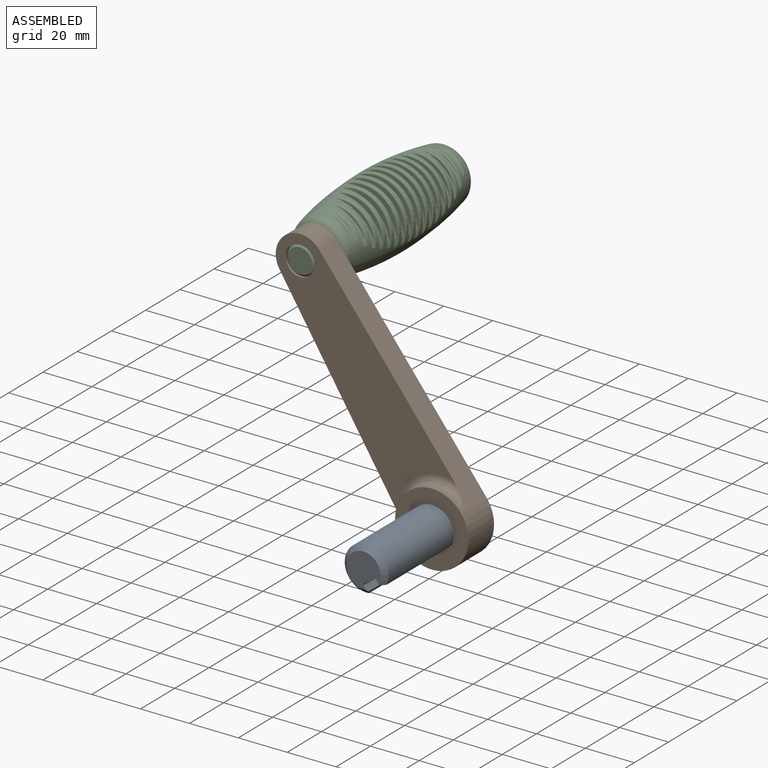
[diagram: assembled view]
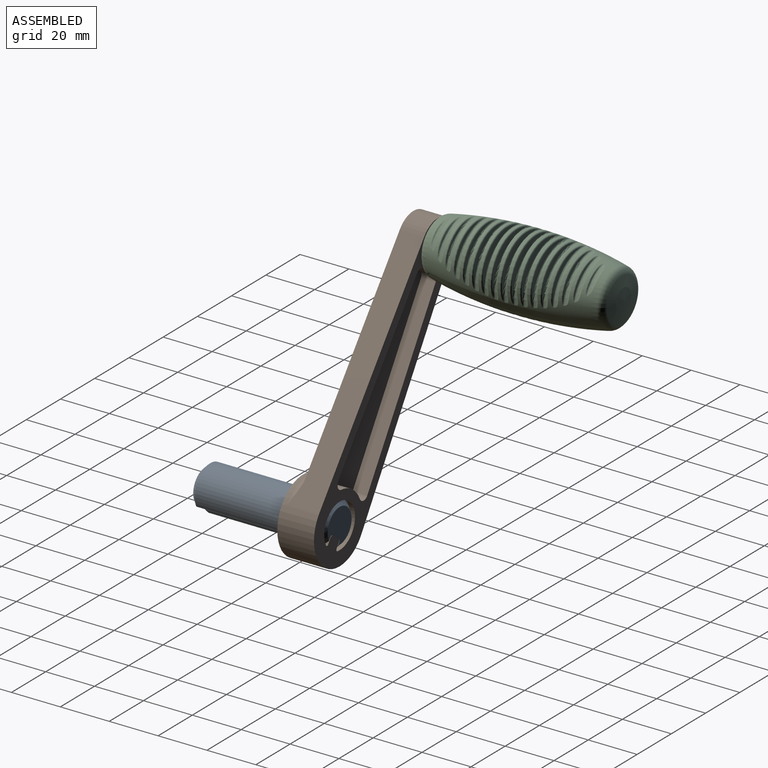
[diagram: assembled view, second angle]
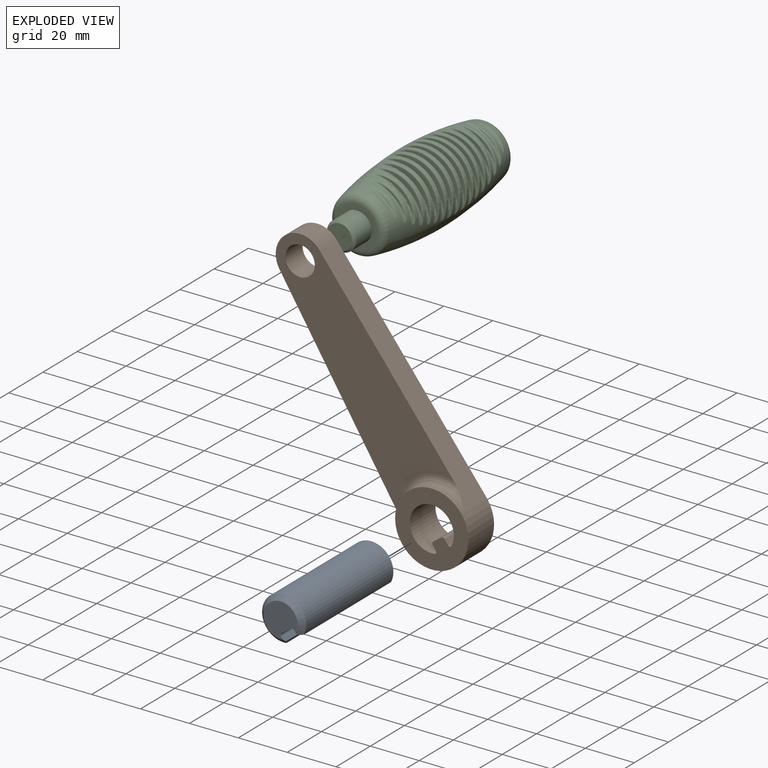
[diagram: exploded view]
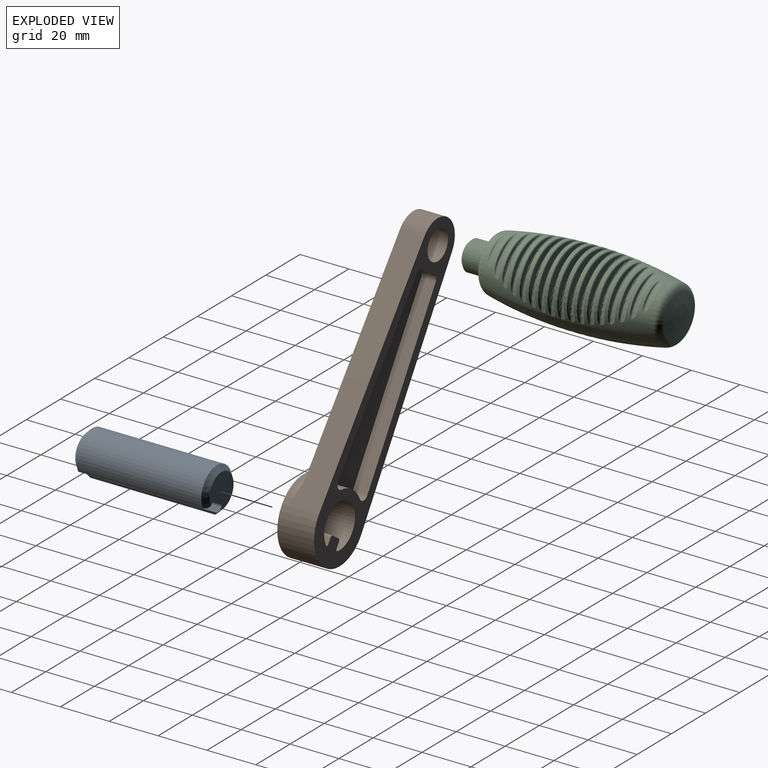
[diagram: exploded view, second angle]
ASSEMBLY  parts=3 mates=2
PART A: 12 faces, bbox 18.1x55.1x17.3 mm
  f0: plane 14x13.2mm, normal (0,-1,0), area 136.6mm2, adj f3,f5,f6,f7,f8,f9
  f1: plane 14x13.2mm, normal (0,1,0), area 136.6mm2, adj f2,f5,f6,f7,f8,f9
  f2: cone r=9mm half-angle=45deg, axis (0,-1,0), area 121.4mm2, adj f1,f4,f5,f7,f10,f11
  f3: cone r=7mm half-angle=45deg, axis (0,1,0), area 121.4mm2, adj f0,f4,f5,f7,f10,f11
  f4: cylinder r=9mm len=51mm, axis (0,1,0), area 2419.3mm2, adj f2,f3,f10,f11
  f5: plane 55.03x2.25mm, normal (-1,0,0), area 120.9mm2, adj f0,f1,f2,f3,f8,f11
  f6: plane 55x4.5mm, normal (0,0,-1), area 247.5mm2, adj f0,f1,f8,f9
  f7: plane 55.03x2.25mm, normal (1,0,0), area 120.9mm2, adj f0,f1,f2,f3,f9,f10
  f8: cylinder r=1mm len=55mm, axis (0,1,0), area 86.4mm2, adj f0,f1,f5,f6
  f9: cylinder r=1mm len=55mm, axis (0,1,0), area 86.4mm2, adj f0,f1,f6,f7
  f10: plane 53.22x1.16mm, normal (0.51,0,-0.86), area 67.3mm2, adj f2,f3,f4,f7
  f11: plane 53.22x1.16mm, normal (-0.51,0,-0.86), area 67.3mm2, adj f2,f3,f4,f5
PART B: 26 faces, bbox 43.5x15.1x125 mm
  f0: cylinder r=9mm len=18mm, axis (0,-1,0), area 720.8mm2, adj f1,f2,f24,f25
  f1: plane 125x30mm, normal (0,1,0), area 1352.3mm2, adj f0,f3,f4,f5,f6,f7,f9,f10
  f2: plane 30x30mm, normal (0,-1,0), area 481.6mm2, adj f0,f3,f19,f20,f21,f22,f23,f24
  f3: cylinder r=15mm len=30mm, axis (0,-1,0), area 820.6mm2, adj f1,f2,f4,f6,f14
  f4: plane 99.75x13mm, normal (-1,0,0.05), area 1010.1mm2, adj f1,f3,f5,f8,f14
  f5: cylinder r=10mm len=19.98mm, axis (0,1,0), area 304.2mm2, adj f1,f4,f6,f8
  f6: plane 99.75x13mm, normal (1,0,0.05), area 1010.1mm2, adj f1,f3,f5,f8,f14
  f7: cylinder r=6mm len=12mm, axis (0,1,0), area 377mm2, adj f1,f8
  f8: plane 99.31x28.97mm, normal (0,-1,0), area 2083.6mm2, adj f4,f5,f6,f7,f14
  f9: cylinder r=13mm len=13.15mm, axis (0,-1,0), area 82.7mm2, adj f1,f13,f15,f16
  f10: plane 74.82x6mm, normal (1,0,-0.05), area 449.5mm2, adj f1,f13,f16,f18
  f11: plane 74.82x6mm, normal (-1,0,-0.05), area 449.5mm2, adj f1,f13,f15,f17
  f12: cylinder r=10mm len=6.55mm, axis (0,1,0), area 40.1mm2, adj f1,f13,f17,f18
  f13: plane 79.82x20.68mm, normal (0,1,0), area 1322.9mm2, adj f9,f10,f11,f12,f15,f16,f17,f18
  f14: torus R=18mm, axis (0,1,0), area 180.7mm2, adj f3,f4,f6,f8
  f15: cylinder r=2.5mm len=6mm, axis (0,-1,0), area 32.3mm2, adj f1,f9,f11,f13
  f16: cylinder r=2.5mm len=6mm, axis (0,-1,0), area 32.3mm2, adj f1,f9,f10,f13
  f17: cylinder r=2.5mm len=6mm, axis (0,1,0), area 27.8mm2, adj f1,f11,f12,f13
  f18: cylinder r=2.5mm len=6mm, axis (0,1,0), area 27.8mm2, adj f1,f10,f12,f13
  f19: plane 15x4mm, normal (0,0,1), area 60mm2, adj f1,f2,f22,f23
  f20: plane 15x2.35mm, normal (1,0,0), area 35.2mm2, adj f1,f2,f22,f24
  f21: plane 15x2.35mm, normal (-1,0,0), area 35.2mm2, adj f1,f2,f23,f25
  f22: cylinder r=1mm len=15mm, axis (0,1,0), area 23.6mm2, adj f1,f2,f19,f20
  f23: cylinder r=1mm len=15mm, axis (0,1,0), area 23.6mm2, adj f1,f2,f19,f21
  f24: cylinder r=0.75mm len=15mm, axis (0,-1,0), area 23mm2, adj f0,f1,f2,f20
  f25: cylinder r=0.75mm len=15mm, axis (0,-1,0), area 23mm2, adj f0,f1,f2,f21
PART C: 414 faces, bbox 32.8x86.2x32.6 mm
  f0: revolved ~70.67x30.13mm, area 3249.1mm2, adj f163,f164,f165,f166,f167,f168,f169,f170
  f1: sphere r=50mm, area 257.5mm2, adj f411
  f2: plane 10x10mm, normal (0,-1,0), area 78.5mm2, adj f413
  f3: cylinder r=6mm len=12mm, axis (0,-1,0), area 339.3mm2, adj f4,f413
  f4: plane 17.14x17.14mm, normal (0,-1,0), area 117.6mm2, adj f3,f412
  f5: torus R=18.23mm, axis (0,-1,0), area 3.3mm2, adj f7,f391
  f6: torus R=18.23mm, axis (0,-1,0), area 7.4mm2, adj f7,f394
  f7: cylinder r=17.73mm len=12.84mm, axis (0,-1,0), area 12.1mm2, adj f5,f6,f392,f393
  f8: cylinder r=17.73mm len=12.84mm, axis (0,-1,0), area 12.1mm2, adj f9,f10,f388,f389
  f9: torus R=18.23mm, axis (0,-1,0), area 3.3mm2, adj f8,f387
  f10: torus R=18.23mm, axis (0,-1,0), area 7.4mm2, adj f8,f390
  f11: torus R=18.23mm, axis (0,-1,0), area 10mm2, adj f13,f386
  f12: torus R=18.23mm, axis (0,-1,0), area 13.6mm2, adj f13,f14,f382,f383
  f13: cylinder r=17.73mm len=18.43mm, axis (0,-1,0), area 18.7mm2, adj f11,f12,f384,f385
  f14: plane 11.62x1.43mm, normal (0,-1,0), area 3.8mm2, adj f12,f381
  f15: plane 11.62x1.43mm, normal (0,-1,0), area 3.8mm2, adj f18,f375
  f16: cylinder r=17.73mm len=18.43mm, axis (0,-1,0), area 18.7mm2, adj f17,f18,f378,f379
  f17: torus R=18.23mm, axis (0,-1,0), area 10mm2, adj f16,f380
  f18: torus R=18.23mm, axis (0,-1,0), area 13.6mm2, adj f15,f16,f376,f377
  f19: torus R=18.23mm, axis (0,-1,0), area 15.3mm2, adj f21,f23,f372,f373
  f20: torus R=18.23mm, axis (0,-1,0), area 17.3mm2, adj f21,f22,f368,f369
  f21: cylinder r=17.73mm len=22.02mm, axis (0,-1,0), area 23.3mm2, adj f19,f20,f370,f371
  f22: plane 17.11x3.18mm, normal (0,-1,0), area 12.6mm2, adj f20,f367
  f23: plane 13.31x1.89mm, normal (0,1,0), area 5.7mm2, adj f19,f374
  f24: plane 13.31x1.89mm, normal (0,1,0), area 5.7mm2, adj f27,f366
  f25: plane 17.11x3.18mm, normal (0,-1,0), area 12.6mm2, adj f28,f359
  f26: cylinder r=17.73mm len=22.02mm, axis (0,-1,0), area 23.3mm2, adj f27,f28,f362,f363
  f27: torus R=18.23mm, axis (0,-1,0), area 15.3mm2, adj f24,f26,f364,f365
  f28: torus R=18.23mm, axis (0,-1,0), area 17.3mm2, adj f25,f26,f360,f361
  f29: torus R=18.23mm, axis (0,-1,0), area 18.5mm2, adj f31,f33,f356,f357
  f30: torus R=18.23mm, axis (0,-1,0), area 20mm2, adj f31,f32,f352,f353
  f31: cylinder r=17.73mm len=24.54mm, axis (0,-1,0), area 26.7mm2, adj f29,f30,f354,f355
  f32: plane 20.5x4.67mm, normal (0,-1,0), area 22.5mm2, adj f30,f351
  f33: plane 18.09x3.57mm, normal (0,1,0), area 15mm2, adj f29,f358
  f34: plane 18.09x3.57mm, normal (0,1,0), area 15mm2, adj f37,f350
  f35: plane 20.5x4.67mm, normal (0,-1,0), area 22.5mm2, adj f38,f343
  f36: cylinder r=17.73mm len=24.54mm, axis (0,-1,0), area 26.7mm2, adj f37,f38,f346,f347
  f37: torus R=18.23mm, axis (0,-1,0), area 18.5mm2, adj f34,f36,f348,f349
  f38: torus R=18.23mm, axis (0,-1,0), area 20mm2, adj f35,f36,f344,f345
  f39: torus R=18.23mm, axis (0,-1,0), area 20.9mm2, adj f41,f43,f340,f341
  f40: torus R=18.23mm, axis (0,-1,0), area 22mm2, adj f41,f42,f336,f337
  f41: cylinder r=17.73mm len=26.33mm, axis (0,-1,0), area 29.4mm2, adj f39,f40,f338,f339
  f42: plane 22.8x5.9mm, normal (0,-1,0), area 32mm2, adj f40,f335
  f43: plane 21.16x5.01mm, normal (0,1,0), area 25mm2, adj f39,f342
  f44: plane 21.16x5.01mm, normal (0,1,0), area 25mm2, adj f47,f334
  f45: plane 22.8x5.9mm, normal (0,-1,0), area 32mm2, adj f48,f327
  f46: cylinder r=17.73mm len=26.33mm, axis (0,-1,0), area 29.4mm2, adj f47,f48,f330,f331
  f47: torus R=18.23mm, axis (0,-1,0), area 20.9mm2, adj f44,f46,f332,f333
  f48: torus R=18.23mm, axis (0,-1,0), area 22mm2, adj f45,f46,f328,f329
  f49: torus R=18.23mm, axis (0,-1,0), area 22.7mm2, adj f51,f53,f324,f325
  f50: torus R=18.23mm, axis (0,-1,0), area 23.5mm2, adj f51,f52,f320,f321
  f51: cylinder r=17.73mm len=27.57mm, axis (0,-1,0), area 31.4mm2, adj f49,f50,f322,f323
  f52: plane 24.35x6.85mm, normal (0,-1,0), area 40mm2, adj f50,f319
  f53: plane 23.25x6.17mm, normal (0,1,0), area 34.2mm2, adj f49,f326
  f54: plane 23.25x6.17mm, normal (0,1,0), area 34.2mm2, adj f57,f318
  f55: plane 24.35x6.85mm, normal (0,-1,0), area 40mm2, adj f58,f311
  f56: cylinder r=17.73mm len=27.57mm, axis (0,-1,0), area 31.4mm2, adj f57,f58,f314,f315
  f57: torus R=18.23mm, axis (0,-1,0), area 22.7mm2, adj f54,f56,f316,f317
  f58: torus R=18.23mm, axis (0,-1,0), area 23.5mm2, adj f55,f56,f312,f313
  f59: torus R=18.23mm, axis (0,-1,0), area 24mm2, adj f61,f63,f308,f309
  f60: torus R=18.23mm, axis (0,-1,0), area 24.5mm2, adj f61,f62,f304,f305
  f61: cylinder r=17.73mm len=28.38mm, axis (0,-1,0), area 32.8mm2, adj f59,f60,f306,f307
  f62: plane 25.33x7.5mm, normal (0,-1,0), area 45.9mm2, adj f60,f303
  f63: plane 24.65x7.04mm, normal (0,1,0), area 41.7mm2, adj f59,f310
  f64: plane 24.65x7.04mm, normal (0,1,0), area 41.7mm2, adj f67,f302
  f65: plane 25.33x7.5mm, normal (0,-1,0), area 45.9mm2, adj f68,f295
  f66: cylinder r=17.73mm len=28.38mm, axis (0,-1,0), area 32.8mm2, adj f67,f68,f298,f299
  f67: torus R=18.23mm, axis (0,-1,0), area 24mm2, adj f64,f66,f300,f301
  f68: torus R=18.23mm, axis (0,-1,0), area 24.5mm2, adj f65,f66,f296,f297
  f69: torus R=18.23mm, axis (0,-1,0), area 24.8mm2, adj f71,f73,f292,f293
  f70: torus R=18.23mm, axis (0,-1,0), area 25.1mm2, adj f71,f72,f288,f289
  f71: cylinder r=17.73mm len=28.83mm, axis (0,-1,0), area 33.6mm2, adj f69,f70,f290,f291
  f72: plane 25.82x7.84mm, normal (0,-1,0), area 49.1mm2, adj f70,f287
  f73: plane 25.49x7.61mm, normal (0,1,0), area 46.9mm2, adj f69,f294
  f74: plane 25.49x7.61mm, normal (0,1,0), area 46.9mm2, adj f77,f286
  f75: plane 25.82x7.84mm, normal (0,-1,0), area 49.1mm2, adj f78,f279
  f76: cylinder r=17.73mm len=28.83mm, axis (0,-1,0), area 33.6mm2, adj f77,f78,f282,f283
  f77: torus R=18.23mm, axis (0,-1,0), area 24.8mm2, adj f74,f76,f284,f285
  f78: torus R=18.23mm, axis (0,-1,0), area 25.1mm2, adj f75,f76,f280,f281
  f79: plane 25.87x7.88mm, normal (0,1,0), area 49.5mm2, adj f83,f403
  f80: plane 25.87x7.88mm, normal (0,-1,0), area 49.5mm2, adj f81,f410
  f81: torus R=18.23mm, axis (0,-1,0), area 25.2mm2, adj f80,f82,f408,f409
  f82: cylinder r=17.73mm len=28.94mm, axis (0,-1,0), area 33.9mm2, adj f81,f83,f406,f407
  f83: torus R=18.23mm, axis (0,-1,0), area 25.2mm2, adj f79,f82,f404,f405
  f84: plane 25.87x7.88mm, normal (0,1,0), area 49.5mm2, adj f87,f395
  f85: plane 25.87x7.88mm, normal (0,-1,0), area 49.5mm2, adj f88,f402
  f86: cylinder r=17.73mm len=28.94mm, axis (0,-1,0), area 33.9mm2, adj f87,f88,f398,f399
  f87: torus R=18.23mm, axis (0,-1,0), area 25.2mm2, adj f84,f86,f396,f397
  f88: torus R=18.23mm, axis (0,-1,0), area 25.2mm2, adj f85,f86,f400,f401
  f89: torus R=18.23mm, axis (0,1,0), area 25.1mm2, adj f91,f92,f276,f277
  f90: torus R=18.23mm, axis (0,1,0), area 24.8mm2, adj f91,f93,f272,f273
  f91: cylinder r=17.73mm len=28.83mm, axis (0,1,0), area 33.6mm2, adj f89,f90,f274,f275
  f92: plane 25.82x7.84mm, normal (0,1,0), area 49.1mm2, adj f89,f278
  f93: plane 25.49x7.61mm, normal (0,-1,0), area 46.9mm2, adj f90,f271
  f94: plane 25.49x7.61mm, normal (0,-1,0), area 46.9mm2, adj f97,f263
  f95: plane 25.82x7.84mm, normal (0,1,0), area 49.1mm2, adj f98,f270
  f96: cylinder r=17.73mm len=28.83mm, axis (0,1,0), area 33.6mm2, adj f97,f98,f266,f267
  f97: torus R=18.23mm, axis (0,1,0), area 24.8mm2, adj f94,f96,f264,f265
  f98: torus R=18.23mm, axis (0,1,0), area 25.1mm2, adj f95,f96,f268,f269
  f99: torus R=18.23mm, axis (0,1,0), area 24.5mm2, adj f101,f102,f260,f261
  f100: torus R=18.23mm, axis (0,1,0), area 24mm2, adj f101,f103,f256,f257
  f101: cylinder r=17.73mm len=28.38mm, axis (0,1,0), area 32.8mm2, adj f99,f100,f258,f259
  f102: plane 25.33x7.5mm, normal (0,1,0), area 45.9mm2, adj f99,f262
  f103: plane 24.65x7.04mm, normal (0,-1,0), area 41.7mm2, adj f100,f255
  f104: plane 24.65x7.04mm, normal (0,-1,0), area 41.7mm2, adj f107,f247
  f105: plane 25.33x7.5mm, normal (0,1,0), area 45.9mm2, adj f108,f254
  f106: cylinder r=17.73mm len=28.38mm, axis (0,1,0), area 32.8mm2, adj f107,f108,f250,f251
  f107: torus R=18.23mm, axis (0,1,0), area 24mm2, adj f104,f106,f248,f249
  f108: torus R=18.23mm, axis (0,1,0), area 24.5mm2, adj f105,f106,f252,f253
  f109: torus R=18.23mm, axis (0,1,0), area 23.5mm2, adj f111,f112,f244,f245
  f110: torus R=18.23mm, axis (0,1,0), area 22.7mm2, adj f111,f113,f240,f241
  f111: cylinder r=17.73mm len=27.57mm, axis (0,1,0), area 31.4mm2, adj f109,f110,f242,f243
  f112: plane 24.35x6.85mm, normal (0,1,0), area 40mm2, adj f109,f246
  f113: plane 23.25x6.17mm, normal (0,-1,0), area 34.2mm2, adj f110,f239
  f114: plane 23.25x6.17mm, normal (0,-1,0), area 34.2mm2, adj f117,f231
  f115: plane 24.35x6.85mm, normal (0,1,0), area 40mm2, adj f118,f238
  f116: cylinder r=17.73mm len=27.57mm, axis (0,1,0), area 31.4mm2, adj f117,f118,f234,f235
  f117: torus R=18.23mm, axis (0,1,0), area 22.7mm2, adj f114,f116,f232,f233
  f118: torus R=18.23mm, axis (0,1,0), area 23.5mm2, adj f115,f116,f236,f237
  f119: torus R=18.23mm, axis (0,1,0), area 22mm2, adj f121,f122,f228,f229
  f120: torus R=18.23mm, axis (0,1,0), area 20.9mm2, adj f121,f123,f224,f225
  f121: cylinder r=17.73mm len=26.33mm, axis (0,1,0), area 29.4mm2, adj f119,f120,f226,f227
  f122: plane 22.8x5.9mm, normal (0,1,0), area 32mm2, adj f119,f230
  f123: plane 21.16x5.01mm, normal (0,-1,0), area 25mm2, adj f120,f223
  f124: plane 21.16x5.01mm, normal (0,-1,0), area 25mm2, adj f127,f215
  f125: plane 22.8x5.9mm, normal (0,1,0), area 32mm2, adj f128,f222
  f126: cylinder r=17.73mm len=26.33mm, axis (0,1,0), area 29.4mm2, adj f127,f128,f218,f219
  f127: torus R=18.23mm, axis (0,1,0), area 20.9mm2, adj f124,f126,f216,f217
  f128: torus R=18.23mm, axis (0,1,0), area 22mm2, adj f125,f126,f220,f221
  f129: torus R=18.23mm, axis (0,1,0), area 20mm2, adj f131,f132,f212,f213
  f130: torus R=18.23mm, axis (0,1,0), area 18.5mm2, adj f131,f133,f208,f209
  f131: cylinder r=17.73mm len=24.54mm, axis (0,1,0), area 26.7mm2, adj f129,f130,f210,f211
  f132: plane 20.5x4.67mm, normal (0,1,0), area 22.5mm2, adj f129,f214
  f133: plane 18.09x3.57mm, normal (0,-1,0), area 15mm2, adj f130,f207
  f134: plane 18.09x3.57mm, normal (0,-1,0), area 15mm2, adj f137,f199
  f135: plane 20.5x4.67mm, normal (0,1,0), area 22.5mm2, adj f138,f206
  f136: cylinder r=17.73mm len=24.54mm, axis (0,1,0), area 26.7mm2, adj f137,f138,f202,f203
  f137: torus R=18.23mm, axis (0,1,0), area 18.5mm2, adj f134,f136,f200,f201
  f138: torus R=18.23mm, axis (0,1,0), area 20mm2, adj f135,f136,f204,f205
  f139: torus R=18.23mm, axis (0,1,0), area 17.3mm2, adj f141,f142,f196,f197
  f140: torus R=18.23mm, axis (0,1,0), area 15.3mm2, adj f141,f143,f192,f193
  f141: cylinder r=17.73mm len=22.02mm, axis (0,1,0), area 23.3mm2, adj f139,f140,f194,f195
  f142: plane 17.11x3.18mm, normal (0,1,0), area 12.6mm2, adj f139,f198
  f143: plane 13.31x1.89mm, normal (0,-1,0), area 5.7mm2, adj f140,f191
  f144: plane 13.31x1.89mm, normal (0,-1,0), area 5.7mm2, adj f147,f183
  f145: plane 17.11x3.18mm, normal (0,1,0), area 12.6mm2, adj f148,f190
  f146: cylinder r=17.73mm len=22.02mm, axis (0,1,0), area 23.3mm2, adj f147,f148,f186,f187
  f147: torus R=18.23mm, axis (0,1,0), area 15.3mm2, adj f144,f146,f184,f185
  f148: torus R=18.23mm, axis (0,1,0), area 17.3mm2, adj f145,f146,f188,f189
  f149: torus R=18.23mm, axis (0,1,0), area 13.6mm2, adj f151,f152,f180,f181
  f150: torus R=18.23mm, axis (0,1,0), area 10mm2, adj f151,f177
  f151: cylinder r=17.73mm len=18.43mm, axis (0,1,0), area 18.7mm2, adj f149,f150,f178,f179
  f152: plane 11.62x1.43mm, normal (0,1,0), area 3.8mm2, adj f149,f182
  f153: plane 11.62x1.43mm, normal (0,1,0), area 3.8mm2, adj f156,f176
  f154: cylinder r=17.73mm len=18.43mm, axis (0,1,0), area 18.7mm2, adj f155,f156,f172,f173
  f155: torus R=18.23mm, axis (0,1,0), area 10mm2, adj f154,f171
  f156: torus R=18.23mm, axis (0,1,0), area 13.6mm2, adj f153,f154,f174,f175
  f157: torus R=18.23mm, axis (0,1,0), area 7.4mm2, adj f159,f170
  f158: torus R=18.23mm, axis (0,1,0), area 3.3mm2, adj f159,f167
  f159: cylinder r=17.73mm len=12.84mm, axis (0,1,0), area 12.1mm2, adj f157,f158,f168,f169
  f160: cylinder r=17.73mm len=12.84mm, axis (0,1,0), area 12.1mm2, adj f161,f162,f164,f165
  f161: torus R=18.23mm, axis (0,1,0), area 3.3mm2, adj f160,f163
  f162: torus R=18.23mm, axis (0,1,0), area 7.4mm2, adj f160,f166
  f163: bspline ~11.02x1.25mm, area 4.5mm2, adj f0,f161,f164,f165
  f164: bspline ~2.79x2.77mm, area 0.2mm2, adj f0,f160,f163,f166
  f165: bspline ~2.79x2.77mm, area 0.2mm2, adj f0,f160,f163,f166
  f166: bspline ~13.19x2.08mm, area 6.6mm2, adj f0,f162,f164,f165
  f167: bspline ~11.02x1.25mm, area 4.5mm2, adj f0,f158,f168,f169
  f168: bspline ~2.79x2.77mm, area 0.2mm2, adj f0,f159,f167,f170
  f169: bspline ~2.79x2.77mm, area 0.2mm2, adj f0,f159,f167,f170
  f170: bspline ~13.19x2.08mm, area 6.6mm2, adj f0,f157,f168,f169
  f171: bspline ~17.54x3.42mm, area 12.5mm2, adj f0,f155,f172,f173
  f172: bspline ~5.08x2.99mm, area 0.2mm2, adj f0,f154,f171,f174
  f173: bspline ~5.08x2.99mm, area 0.2mm2, adj f0,f154,f171,f175
  f174: bspline ~4.8x3.26mm, area 2.1mm2, adj f0,f156,f172,f176
  f175: bspline ~4.8x3.26mm, area 2.1mm2, adj f0,f156,f173,f176
  f176: torus R=12.54mm, axis (0,1,0), area 8.8mm2, adj f0,f153,f174,f175
  f177: bspline ~17.54x3.42mm, area 12.5mm2, adj f0,f150,f178,f179
  f178: bspline ~5.08x2.99mm, area 0.2mm2, adj f0,f151,f177,f180
  f179: bspline ~5.08x2.99mm, area 0.2mm2, adj f0,f151,f177,f181
  f180: bspline ~4.8x3.26mm, area 2.1mm2, adj f0,f149,f178,f182
  f181: bspline ~4.8x3.26mm, area 2.1mm2, adj f0,f149,f179,f182
  f182: torus R=12.54mm, axis (0,1,0), area 8.8mm2, adj f0,f152,f180,f181
  f183: torus R=12.69mm, axis (0,1,0), area 12.4mm2, adj f0,f144,f184,f185
  f184: bspline ~5.28x4.06mm, area 2.9mm2, adj f0,f147,f183,f186
  f185: bspline ~5.27x4.06mm, area 2.9mm2, adj f0,f147,f183,f187
  f186: bspline ~5.07x2.05mm, area 0.2mm2, adj f0,f146,f184,f188
  f187: bspline ~3.6x1.38mm, area 0.2mm2, adj f0,f146,f185,f189
  f188: bspline ~3.71x3.56mm, area 1.7mm2, adj f0,f148,f186,f190
  f189: bspline ~3.71x3.56mm, area 1.7mm2, adj f0,f148,f187,f190
  f190: torus R=13.11mm, axis (0,1,0), area 13.7mm2, adj f0,f145,f188,f189
  f191: torus R=12.69mm, axis (0,1,0), area 12.4mm2, adj f0,f143,f192,f193
  f192: bspline ~4.38x3.57mm, area 2.9mm2, adj f0,f140,f191,f194
  f193: bspline ~5.27x4.06mm, area 2.9mm2, adj f0,f140,f191,f195
  f194: bspline ~5.07x2.05mm, area 0.2mm2, adj f0,f141,f192,f196
  f195: bspline ~3.6x1.38mm, area 0.2mm2, adj f0,f141,f193,f197
  f196: bspline ~3.71x3.56mm, area 1.7mm2, adj f0,f139,f194,f198
  f197: bspline ~3.71x3.56mm, area 1.7mm2, adj f0,f139,f195,f198
  f198: torus R=13.11mm, axis (0,1,0), area 13.7mm2, adj f0,f142,f196,f197
  f199: torus R=13.24mm, axis (0,1,0), area 17.3mm2, adj f0,f134,f200,f201
  f200: bspline ~4.2x4.13mm, area 2.4mm2, adj f0,f137,f199,f202
  f201: bspline ~4.2x4.13mm, area 2.4mm2, adj f0,f137,f199,f203
  f202: bspline ~5.06x1.47mm, area 0.2mm2, adj f0,f136,f200,f204
  f203: bspline ~5.06x1.47mm, area 0.2mm2, adj f0,f136,f201,f205
  f204: bspline ~3.75x3.14mm, area 1.6mm2, adj f0,f138,f202,f206
  f205: bspline ~3.75x3.14mm, area 1.6mm2, adj f0,f138,f203,f206
  f206: torus R=13.58mm, axis (0,1,0), area 17.4mm2, adj f0,f135,f204,f205
  f207: torus R=13.24mm, axis (0,1,0), area 17.3mm2, adj f0,f133,f208,f209
  f208: bspline ~4.21x4.14mm, area 2.4mm2, adj f0,f130,f207,f210
  f209: bspline ~4.2x4.13mm, area 2.4mm2, adj f0,f130,f207,f211
  f210: bspline ~5.06x1.47mm, area 0.2mm2, adj f0,f131,f208,f212
  f211: bspline ~5.06x1.47mm, area 0.2mm2, adj f0,f131,f209,f213
  f212: bspline ~3.75x3.14mm, area 1.6mm2, adj f0,f129,f210,f214
  f213: bspline ~3.75x3.14mm, area 1.6mm2, adj f0,f129,f211,f214
  f214: torus R=13.58mm, axis (0,1,0), area 17.4mm2, adj f0,f132,f212,f213
  f215: torus R=13.69mm, axis (0,1,0), area 20.7mm2, adj f0,f124,f216,f217
  f216: bspline ~4.25x3.47mm, area 2.1mm2, adj f0,f127,f215,f218
  f217: bspline ~4.25x3.46mm, area 2.1mm2, adj f0,f127,f215,f219
  f218: bspline ~5.05x1.21mm, area 0.2mm2, adj f0,f126,f216,f220
  f219: bspline ~5.05x1.21mm, area 0.2mm2, adj f0,f126,f217,f221
  f220: bspline ~3.88x2.79mm, area 1.6mm2, adj f0,f128,f218,f222
  f221: bspline ~3.88x2.79mm, area 1.6mm2, adj f0,f128,f219,f222
  f222: torus R=13.96mm, axis (0,1,0), area 20.3mm2, adj f0,f125,f220,f221
  f223: torus R=13.69mm, axis (0,1,0), area 20.7mm2, adj f0,f123,f224,f225
  f224: bspline ~4.25x3.47mm, area 2.1mm2, adj f0,f120,f223,f226
  f225: bspline ~4.25x3.46mm, area 2.1mm2, adj f0,f120,f223,f227
  f226: bspline ~5.05x1.21mm, area 0.2mm2, adj f0,f121,f224,f228
  f227: bspline ~5.05x1.21mm, area 0.2mm2, adj f0,f121,f225,f229
  f228: bspline ~3.88x2.79mm, area 1.6mm2, adj f0,f119,f226,f230
  f229: bspline ~3.88x2.79mm, area 1.6mm2, adj f0,f119,f227,f230
  f230: torus R=13.96mm, axis (0,1,0), area 20.3mm2, adj f0,f122,f228,f229
  f231: torus R=14.04mm, axis (0,1,0), area 23.1mm2, adj f0,f114,f232,f233
  f232: bspline ~4.28x3.01mm, area 2mm2, adj f0,f117,f231,f234
  f233: bspline ~4.28x3.02mm, area 2mm2, adj f0,f117,f231,f235
  f234: bspline ~5.04x0.97mm, area 0.2mm2, adj f0,f116,f232,f236
  f235: bspline ~5.04x0.97mm, area 0.2mm2, adj f0,f116,f233,f237
  f236: bspline ~3.98x2.56mm, area 1.6mm2, adj f0,f118,f234,f238
  f237: bspline ~3.98x2.56mm, area 1.6mm2, adj f0,f118,f235,f238
  f238: torus R=14.25mm, axis (0,1,0), area 22.5mm2, adj f0,f115,f236,f237
  f239: torus R=14.04mm, axis (0,1,0), area 23.1mm2, adj f0,f113,f240,f241
  f240: bspline ~4.28x3.02mm, area 2mm2, adj f0,f110,f239,f242
  f241: bspline ~4.28x3.02mm, area 2mm2, adj f0,f110,f239,f243
  f242: bspline ~5.04x0.97mm, area 0.2mm2, adj f0,f111,f240,f244
  f243: bspline ~5.04x0.97mm, area 0.2mm2, adj f0,f111,f241,f245
  f244: bspline ~3.98x2.56mm, area 1.6mm2, adj f0,f109,f242,f246
  f245: bspline ~3.98x2.56mm, area 1.6mm2, adj f0,f109,f243,f246
  f246: torus R=14.25mm, axis (0,1,0), area 22.5mm2, adj f0,f112,f244,f245
  f247: torus R=14.31mm, axis (0,1,0), area 24.7mm2, adj f0,f104,f248,f249
  f248: bspline ~4.27x2.71mm, area 1.9mm2, adj f0,f107,f247,f250
  f249: bspline ~3.41x2.07mm, area 1.9mm2, adj f0,f107,f247,f251
  f250: bspline ~5.03x0.71mm, area 0.2mm2, adj f0,f106,f248,f252
  f251: bspline ~5.03x0.71mm, area 0.2mm2, adj f0,f106,f249,f253
  f252: bspline ~4.07x2.43mm, area 1.6mm2, adj f0,f108,f250,f254
  f253: bspline ~4.07x2.43mm, area 1.6mm2, adj f0,f108,f251,f254
  f254: torus R=14.44mm, axis (0,1,0), area 24.2mm2, adj f0,f105,f252,f253
  f255: torus R=14.31mm, axis (0,1,0), area 24.7mm2, adj f0,f103,f256,f257
  f256: bspline ~4.27x2.71mm, area 1.9mm2, adj f0,f100,f255,f258
  f257: bspline ~3.41x2.07mm, area 1.9mm2, adj f0,f100,f255,f259
  f258: bspline ~5.03x0.71mm, area 0.2mm2, adj f0,f101,f256,f260
  f259: bspline ~5.03x0.71mm, area 0.2mm2, adj f0,f101,f257,f261
  f260: bspline ~4.07x2.43mm, area 1.6mm2, adj f0,f99,f258,f262
  f261: bspline ~4.07x2.43mm, area 1.6mm2, adj f0,f99,f259,f262
  f262: torus R=14.44mm, axis (0,1,0), area 24.2mm2, adj f0,f102,f260,f261
  f263: torus R=14.48mm, axis (0,1,0), area 25.5mm2, adj f0,f94,f264,f265
  f264: bspline ~4.24x2.51mm, area 1.8mm2, adj f0,f97,f263,f266
  f265: bspline ~4.24x2.51mm, area 1.8mm2, adj f0,f97,f263,f267
  f266: bspline ~5.02x0.44mm, area 0.2mm2, adj f0,f96,f264,f268
  f267: bspline ~5.02x0.44mm, area 0.2mm2, adj f0,f96,f265,f269
  f268: bspline ~4.14x2.38mm, area 1.6mm2, adj f0,f98,f266,f270
  f269: bspline ~4.14x2.38mm, area 1.6mm2, adj f0,f98,f267,f270
  f270: torus R=14.55mm, axis (0,1,0), area 25.3mm2, adj f0,f95,f268,f269
  f271: torus R=14.48mm, axis (0,1,0), area 25.5mm2, adj f0,f93,f272,f273
  f272: bspline ~4.24x2.51mm, area 1.8mm2, adj f0,f90,f271,f274
  f273: bspline ~4.24x2.51mm, area 1.8mm2, adj f0,f90,f271,f275
  f274: bspline ~5.02x0.44mm, area 0.2mm2, adj f0,f91,f272,f276
  f275: bspline ~3.52x0.39mm, area 0.2mm2, adj f0,f91,f273,f277
  f276: bspline ~4.14x2.38mm, area 1.6mm2, adj f0,f89,f274,f278
  f277: bspline ~4.14x2.38mm, area 1.6mm2, adj f0,f89,f275,f278
  f278: torus R=14.55mm, axis (0,1,0), area 25.3mm2, adj f0,f92,f276,f277
  f279: torus R=14.55mm, axis (0,-1,0), area 25.3mm2, adj f0,f75,f280,f281
  f280: bspline ~4.14x2.38mm, area 1.6mm2, adj f0,f78,f279,f282
  f281: bspline ~4.14x2.38mm, area 1.6mm2, adj f0,f78,f279,f283
  f282: bspline ~5.02x0.44mm, area 0.2mm2, adj f0,f76,f280,f284
  f283: bspline ~3.52x0.39mm, area 0.2mm2, adj f0,f76,f281,f285
  f284: bspline ~4.24x2.51mm, area 1.8mm2, adj f0,f77,f282,f286
  f285: bspline ~4.24x2.51mm, area 1.8mm2, adj f0,f77,f283,f286
  f286: torus R=14.48mm, axis (0,-1,0), area 25.5mm2, adj f0,f74,f284,f285
  f287: torus R=14.55mm, axis (0,-1,0), area 25.3mm2, adj f0,f72,f288,f289
  f288: bspline ~4.14x2.38mm, area 1.6mm2, adj f0,f70,f287,f290
  f289: bspline ~4.14x2.38mm, area 1.6mm2, adj f0,f70,f287,f291
  f290: bspline ~5.02x0.44mm, area 0.2mm2, adj f0,f71,f288,f292
  f291: bspline ~3.52x0.39mm, area 0.2mm2, adj f0,f71,f289,f293
  f292: bspline ~4.24x2.51mm, area 1.8mm2, adj f0,f69,f290,f294
  f293: bspline ~4.24x2.51mm, area 1.8mm2, adj f0,f69,f291,f294
  f294: torus R=14.48mm, axis (0,-1,0), area 25.5mm2, adj f0,f73,f292,f293
  f295: torus R=14.44mm, axis (0,-1,0), area 24.2mm2, adj f0,f65,f296,f297
  f296: bspline ~4.07x2.43mm, area 1.6mm2, adj f0,f68,f295,f298
  f297: bspline ~4.07x2.43mm, area 1.6mm2, adj f0,f68,f295,f299
  f298: bspline ~5.03x0.71mm, area 0.2mm2, adj f0,f66,f296,f300
  f299: bspline ~3.52x0.58mm, area 0.2mm2, adj f0,f66,f297,f301
  f300: bspline ~4.27x2.71mm, area 1.9mm2, adj f0,f67,f298,f302
  f301: bspline ~3.41x2.07mm, area 1.9mm2, adj f0,f67,f299,f302
  f302: torus R=14.31mm, axis (0,-1,0), area 24.7mm2, adj f0,f64,f300,f301
  f303: torus R=14.44mm, axis (0,-1,0), area 24.2mm2, adj f0,f62,f304,f305
  f304: bspline ~4.07x2.43mm, area 1.6mm2, adj f0,f60,f303,f306
  f305: bspline ~4.07x2.43mm, area 1.6mm2, adj f0,f60,f303,f307
  f306: bspline ~5.03x0.71mm, area 0.2mm2, adj f0,f61,f304,f308
  f307: bspline ~5.03x0.71mm, area 0.2mm2, adj f0,f61,f305,f309
  f308: bspline ~4.27x2.71mm, area 1.9mm2, adj f0,f59,f306,f310
  f309: bspline ~3.41x2.07mm, area 1.9mm2, adj f0,f59,f307,f310
  f310: torus R=14.31mm, axis (0,-1,0), area 24.7mm2, adj f0,f63,f308,f309
  f311: torus R=14.25mm, axis (0,-1,0), area 22.5mm2, adj f0,f55,f312,f313
  f312: bspline ~3.98x2.56mm, area 1.6mm2, adj f0,f58,f311,f314
  f313: bspline ~3.98x2.56mm, area 1.6mm2, adj f0,f58,f311,f315
  f314: bspline ~5.04x0.97mm, area 0.2mm2, adj f0,f56,f312,f316
  f315: bspline ~5.04x0.97mm, area 0.2mm2, adj f0,f56,f313,f317
  f316: bspline ~4.28x3.02mm, area 2mm2, adj f0,f57,f314,f318
  f317: bspline ~4.28x3.02mm, area 2mm2, adj f0,f57,f315,f318
  f318: torus R=14.04mm, axis (0,-1,0), area 23.1mm2, adj f0,f54,f316,f317
  f319: torus R=14.25mm, axis (0,-1,0), area 22.5mm2, adj f0,f52,f320,f321
  f320: bspline ~3.98x2.56mm, area 1.6mm2, adj f0,f50,f319,f322
  f321: bspline ~3.98x2.56mm, area 1.6mm2, adj f0,f50,f319,f323
  f322: bspline ~5.04x0.97mm, area 0.2mm2, adj f0,f51,f320,f324
  f323: bspline ~5.04x0.97mm, area 0.2mm2, adj f0,f51,f321,f325
  f324: bspline ~4.28x3.02mm, area 2mm2, adj f0,f49,f322,f326
  f325: bspline ~4.28x3.02mm, area 2mm2, adj f0,f49,f323,f326
  f326: torus R=14.04mm, axis (0,-1,0), area 23.1mm2, adj f0,f53,f324,f325
  f327: torus R=13.96mm, axis (0,-1,0), area 20.3mm2, adj f0,f45,f328,f329
  f328: bspline ~3.88x2.79mm, area 1.6mm2, adj f0,f48,f327,f330
  f329: bspline ~3.88x2.79mm, area 1.6mm2, adj f0,f48,f327,f331
  f330: bspline ~5.05x1.21mm, area 0.2mm2, adj f0,f46,f328,f332
  f331: bspline ~5.05x1.21mm, area 0.2mm2, adj f0,f46,f329,f333
  f332: bspline ~4.25x3.47mm, area 2.1mm2, adj f0,f47,f330,f334
  f333: bspline ~4.25x3.46mm, area 2.1mm2, adj f0,f47,f331,f334
  f334: torus R=13.69mm, axis (0,-1,0), area 20.7mm2, adj f0,f44,f332,f333
  f335: torus R=13.96mm, axis (0,-1,0), area 20.3mm2, adj f0,f42,f336,f337
  f336: bspline ~3.88x2.79mm, area 1.6mm2, adj f0,f40,f335,f338
  f337: bspline ~3.88x2.79mm, area 1.6mm2, adj f0,f40,f335,f339
  f338: bspline ~5.05x1.21mm, area 0.2mm2, adj f0,f41,f336,f340
  f339: bspline ~5.05x1.21mm, area 0.2mm2, adj f0,f41,f337,f341
  f340: bspline ~4.25x3.47mm, area 2.1mm2, adj f0,f39,f338,f342
  f341: bspline ~4.25x3.46mm, area 2.1mm2, adj f0,f39,f339,f342
  f342: torus R=13.69mm, axis (0,-1,0), area 20.7mm2, adj f0,f43,f340,f341
  f343: torus R=13.58mm, axis (0,-1,0), area 17.4mm2, adj f0,f35,f344,f345
  f344: bspline ~3.75x3.14mm, area 1.6mm2, adj f0,f38,f343,f346
  f345: bspline ~3.75x3.14mm, area 1.6mm2, adj f0,f38,f343,f347
  f346: bspline ~5.06x1.47mm, area 0.2mm2, adj f0,f36,f344,f348
  f347: bspline ~5.06x1.47mm, area 0.2mm2, adj f0,f36,f345,f349
  f348: bspline ~4.2x4.13mm, area 2.4mm2, adj f0,f37,f346,f350
  f349: bspline ~4.2x4.13mm, area 2.4mm2, adj f0,f37,f347,f350
  f350: torus R=13.24mm, axis (0,-1,0), area 17.3mm2, adj f0,f34,f348,f349
  f351: torus R=13.58mm, axis (0,-1,0), area 17.4mm2, adj f0,f32,f352,f353
  f352: bspline ~3.75x3.14mm, area 1.6mm2, adj f0,f30,f351,f354
  f353: bspline ~3.75x3.14mm, area 1.6mm2, adj f0,f30,f351,f355
  f354: bspline ~5.06x1.47mm, area 0.2mm2, adj f0,f31,f352,f356
  f355: bspline ~5.06x1.47mm, area 0.2mm2, adj f0,f31,f353,f357
  f356: bspline ~4.21x4.14mm, area 2.4mm2, adj f0,f29,f354,f358
  f357: bspline ~4.2x4.13mm, area 2.4mm2, adj f0,f29,f355,f358
  f358: torus R=13.24mm, axis (0,-1,0), area 17.3mm2, adj f0,f33,f356,f357
  f359: torus R=13.11mm, axis (0,-1,0), area 13.7mm2, adj f0,f25,f360,f361
  f360: bspline ~3.71x3.56mm, area 1.7mm2, adj f0,f28,f359,f362
  f361: bspline ~3.71x3.56mm, area 1.7mm2, adj f0,f28,f359,f363
  f362: bspline ~5.07x2.05mm, area 0.2mm2, adj f0,f26,f360,f364
  f363: bspline ~5.07x2.05mm, area 0.2mm2, adj f0,f26,f361,f365
  f364: bspline ~4.38x3.57mm, area 2.9mm2, adj f0,f27,f362,f366
  f365: bspline ~5.27x4.06mm, area 2.9mm2, adj f0,f27,f363,f366
  f366: torus R=12.69mm, axis (0,-1,0), area 12.4mm2, adj f0,f24,f364,f365
  f367: torus R=13.11mm, axis (0,-1,0), area 13.7mm2, adj f0,f22,f368,f369
  f368: bspline ~3.71x3.56mm, area 1.7mm2, adj f0,f20,f367,f370
  f369: bspline ~3.71x3.56mm, area 1.7mm2, adj f0,f20,f367,f371
  f370: bspline ~5.07x2.05mm, area 0.2mm2, adj f0,f21,f368,f372
  f371: bspline ~5.07x2.05mm, area 0.2mm2, adj f0,f21,f369,f373
  f372: bspline ~5.28x4.06mm, area 2.9mm2, adj f0,f19,f370,f374
  f373: bspline ~5.27x4.06mm, area 2.9mm2, adj f0,f19,f371,f374
  f374: torus R=12.69mm, axis (0,-1,0), area 12.4mm2, adj f0,f23,f372,f373
  f375: torus R=12.54mm, axis (0,-1,0), area 8.8mm2, adj f0,f15,f376,f377
  f376: bspline ~4.8x3.26mm, area 2.1mm2, adj f0,f18,f375,f378
  f377: bspline ~4.8x3.26mm, area 2.1mm2, adj f0,f18,f375,f379
  f378: bspline ~5.08x2.99mm, area 0.2mm2, adj f0,f16,f376,f380
  f379: bspline ~5.08x2.99mm, area 0.2mm2, adj f0,f16,f377,f380
  f380: bspline ~17.54x3.42mm, area 12.5mm2, adj f0,f17,f378,f379
  f381: torus R=12.54mm, axis (0,-1,0), area 8.8mm2, adj f0,f14,f382,f383
  f382: bspline ~4.8x3.26mm, area 2.1mm2, adj f0,f12,f381,f384
  f383: bspline ~3.86x2.84mm, area 2.1mm2, adj f0,f12,f381,f385
  f384: bspline ~5.08x2.99mm, area 0.2mm2, adj f0,f13,f382,f386
  f385: bspline ~5.08x2.99mm, area 0.2mm2, adj f0,f13,f383,f386
  f386: bspline ~17.54x3.42mm, area 12.5mm2, adj f0,f11,f384,f385
  f387: bspline ~11.02x1.25mm, area 4.5mm2, adj f0,f9,f388,f389
  f388: bspline ~2.79x2.77mm, area 0.2mm2, adj f0,f8,f387,f390
  f389: bspline ~2.79x2.77mm, area 0.2mm2, adj f0,f8,f387,f390
  f390: bspline ~13.19x2.08mm, area 6.6mm2, adj f0,f10,f388,f389
  f391: bspline ~11.02x1.25mm, area 4.5mm2, adj f0,f5,f392,f393
  f392: bspline ~2.79x2.77mm, area 0.2mm2, adj f0,f7,f391,f394
  f393: bspline ~2.79x2.77mm, area 0.2mm2, adj f0,f7,f391,f394
  f394: bspline ~13.19x2.08mm, area 6.6mm2, adj f0,f6,f392,f393
  f395: torus R=14.56mm, axis (0,-1,0), area 25.7mm2, adj f0,f84,f396,f397
  f396: bspline ~4.19x2.4mm, area 1.7mm2, adj f0,f87,f395,f398
  f397: bspline ~4.19x2.4mm, area 1.7mm2, adj f0,f87,f395,f399
  f398: bspline ~5.02x0.2mm, area 0.2mm2, adj f0,f86,f396,f400
  f399: bspline ~5.02x0.2mm, area 0.2mm2, adj f0,f86,f397,f401
  f400: bspline ~4.19x2.4mm, area 1.7mm2, adj f0,f88,f398,f402
  f401: bspline ~4.19x2.4mm, area 1.7mm2, adj f0,f88,f399,f402
  f402: torus R=14.56mm, axis (0,-1,0), area 25.7mm2, adj f0,f85,f400,f401
  f403: torus R=14.56mm, axis (0,-1,0), area 25.7mm2, adj f0,f79,f404,f405
  f404: bspline ~4.19x2.4mm, area 1.7mm2, adj f0,f83,f403,f406
  f405: bspline ~4.19x2.4mm, area 1.7mm2, adj f0,f83,f403,f407
  f406: bspline ~5.02x0.2mm, area 0.2mm2, adj f0,f82,f404,f408
  f407: bspline ~5.02x0.2mm, area 0.2mm2, adj f0,f82,f405,f409
  f408: bspline ~4.19x2.4mm, area 1.7mm2, adj f0,f81,f406,f410
  f409: bspline ~4.19x2.4mm, area 1.7mm2, adj f0,f81,f407,f410
  f410: torus R=14.56mm, axis (0,-1,0), area 25.7mm2, adj f0,f80,f408,f409
  f411: torus R=8.48mm, axis (0,-1,0), area 233.4mm2, adj f0,f1
  f412: torus R=8.57mm, axis (0,-1,0), area 266.3mm2, adj f0,f4
  f413: cone r=5mm half-angle=45deg, axis (0,1,0), area 48.9mm2, adj f2,f3
PLACE A rot(axis=(0,-1,0),35deg) t=(-19.28,-11.11,93.32)mm
PLACE B rot(axis=(0,-1,0),35deg) t=(-19.28,-11.11,93.32)mm
PLACE C rot(axis=(0,1,0),39.1deg) t=(-183.51,-11.11,-111.85)mm
MATE fastened A.f2 <-> B.f0  axis (0,1,0) through (-179.84,16.39,17.52)mm
MATE revolute C.f176 <-> B.f5  axis (0,-1,0) through (-237.2,16.39,99.43)mm
